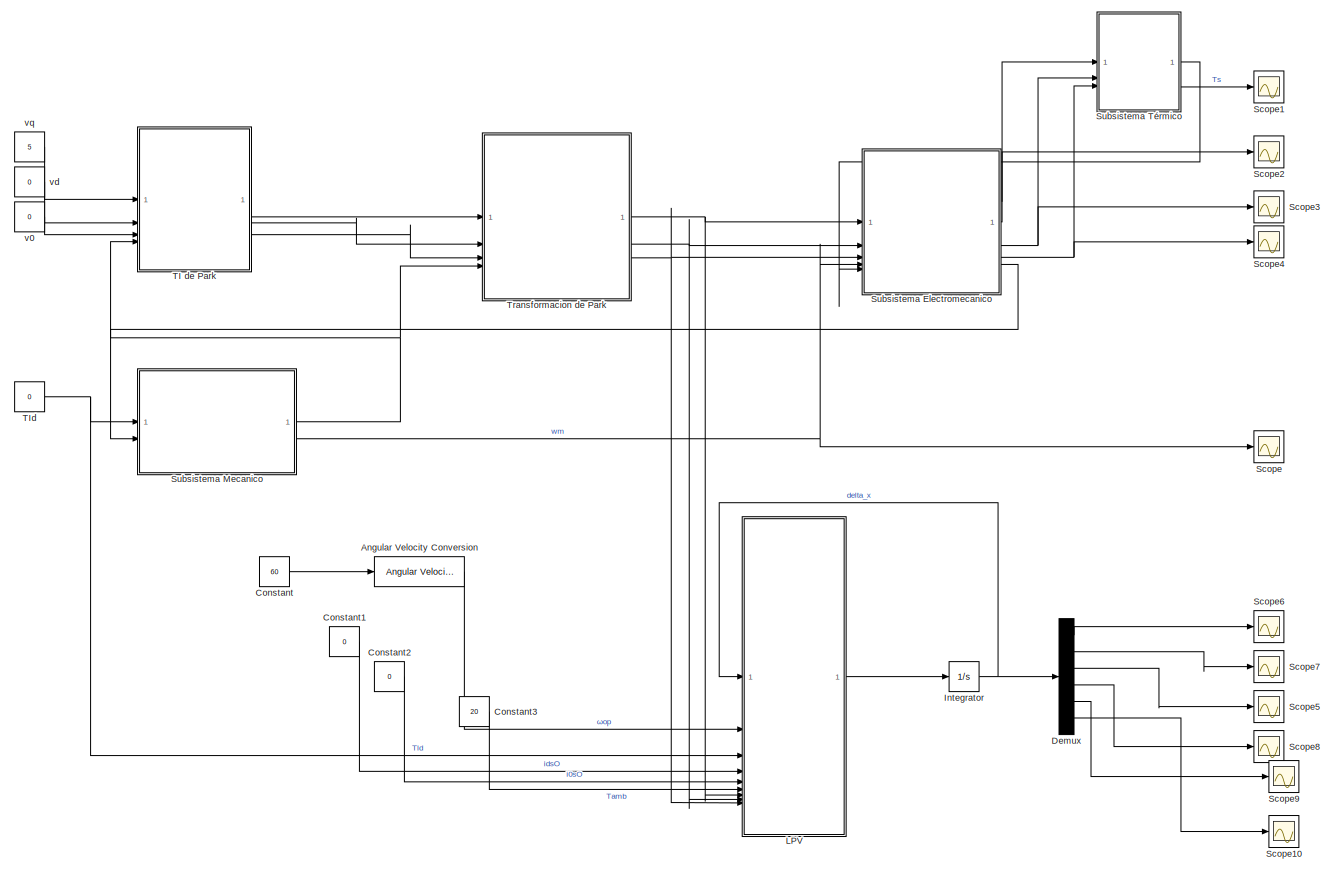
[diagram: root canvas - part 1/1, most of the canvas]
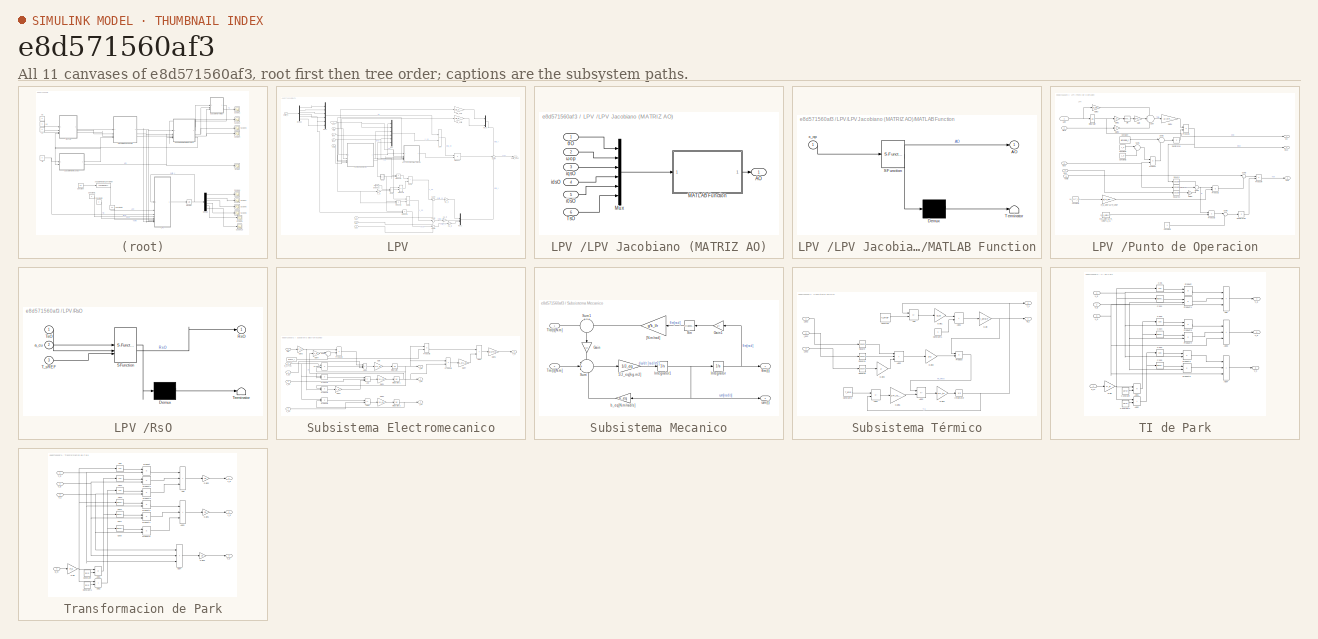
[diagram: thumbnail index - all 11 canvases of the model, root first then tree order]
MODEL slx_e8d571560af3
KIND model
CONFIG AbsTol = auto
CONFIG EnableMultiTasking = off
CONFIG FixedStep = auto
CONFIG MaxStep = auto
CONFIG MinStep = auto
CONFIG PostLoadFcn = parametros_sistema_completo\nrun("parametros_sistema_completo.mlx")
CONFIG RelTol = 1e-3
CONFIG SampleTimeConstraint = Unconstrained
CONFIG SolverName = VariableStepAuto
CONFIG StartTime = 0.0
CONFIG StopTime = 10.0
BLOCK [Reference] Angular Velocity Conversion  REF=aerolibconvert2/Angular Velocity
Conversion
  SourceBlock = aerolibconvert2/Angular Velocity\nConversion
  SourceType = Angular Velocity Conversion
BLOCK [Constant] Constant
  Value = 60
BLOCK [Constant] Constant1
  Value = 0
BLOCK [Constant] Constant2
  Value = 0
BLOCK [Constant] Constant3
  Value = 20
BLOCK [Demux] Demux
  Outputs = 6
BLOCK [Integrator] Integrator
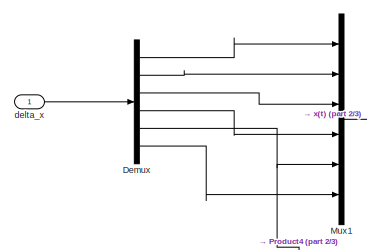
[diagram: LPV  - part 1/3, top left region]
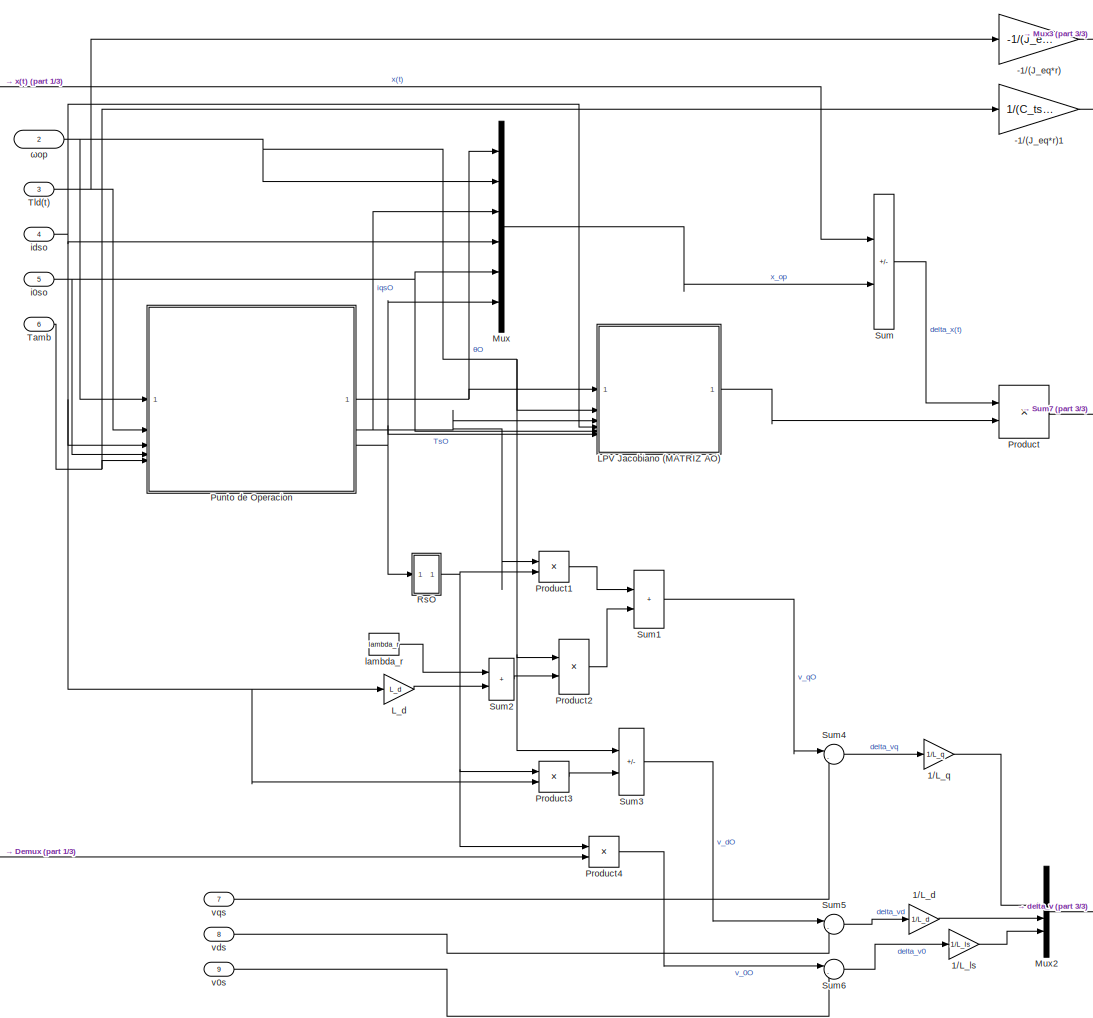
[diagram: LPV  - part 2/3, center side, full height]
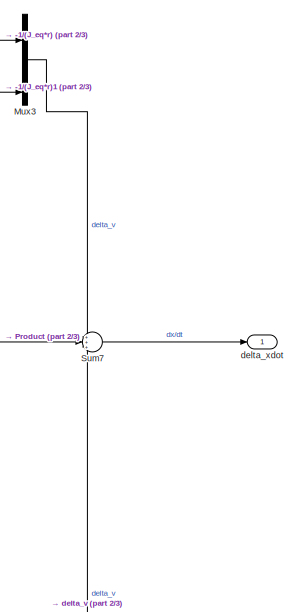
[diagram: LPV  - part 3/3, middle right region]
BLOCK [SubSystem] LPV 
BLOCK [Gain] LPV /-1//(J_eq*r)
  Gain = -1/(J_eq*r)
BLOCK [Gain] LPV /-1//(J_eq*r)1
  Gain = 1/(C_ts*R_ts_amb)
BLOCK [Gain] LPV /1//L_d
  Gain = 1/L_d
BLOCK [Gain] LPV /1//L_ls
  Gain = 1/L_ls
BLOCK [Gain] LPV /1//L_q
  Gain = 1/L_q
BLOCK [Demux] LPV /Demux
  Outputs = 6
BLOCK [SubSystem] LPV /LPV Jacobiano (MATRIZ AO)
BLOCK [Outport] LPV /LPV Jacobiano (MATRIZ AO)/AO
BLOCK [SubSystem] LPV /LPV Jacobiano (MATRIZ AO)/MATLAB Function
  ErrorFcn = Stateflow.Translate.translate
  PermitHierarchicalResolution = ExplicitOnly
  SFBlockType = MATLAB Function
  TreatAsAtomicUnit = on
BLOCK [Demux] LPV /LPV Jacobiano (MATRIZ AO)/MATLAB Function/ Demux 
  Outputs = 1
BLOCK [S-Function] LPV /LPV Jacobiano (MATRIZ AO)/MATLAB Function/ SFunction 
  EnableBusSupport = off
  FunctionName = sf_sfun
  Parameters = params
  PortCounts = [1 2]
  SFcnIsStateOwnerBlock = off
  SFunctionDeploymentMode = off
  Tag = Stateflow S-Function 2
BLOCK [Terminator] LPV /LPV Jacobiano (MATRIZ AO)/MATLAB Function/ Terminator 
BLOCK [Outport] LPV /LPV Jacobiano (MATRIZ AO)/MATLAB Function/AO
BLOCK [Inport] LPV /LPV Jacobiano (MATRIZ AO)/MATLAB Function/x_op
BLOCK [Mux] LPV /LPV Jacobiano (MATRIZ AO)/Mux
  DisplayOption = bar
  Inputs = 6
BLOCK [Inport] LPV /LPV Jacobiano (MATRIZ AO)/TsO
  Port = 6
BLOCK [Inport] LPV /LPV Jacobiano (MATRIZ AO)/i0sO
  Port = 5
BLOCK [Inport] LPV /LPV Jacobiano (MATRIZ AO)/idsO
  Port = 4
BLOCK [Inport] LPV /LPV Jacobiano (MATRIZ AO)/iqsO
  Port = 3
BLOCK [Inport] LPV /LPV Jacobiano (MATRIZ AO)/θO
BLOCK [Inport] LPV /LPV Jacobiano (MATRIZ AO)/ωop
  Port = 2
BLOCK [Gain] LPV /L_d
  Gain = L_d
BLOCK [Mux] LPV /Mux
  DisplayOption = bar
  Inputs = 6
BLOCK [Mux] LPV /Mux1
  DisplayOption = bar
  Inputs = 6
BLOCK [Mux] LPV /Mux2
  DisplayOption = bar
  Inputs = 6
BLOCK [Mux] LPV /Mux3
  DisplayOption = bar
  Inputs = 6
BLOCK [Product] LPV /Product
  Multiplication = Matrix(*)
BLOCK [Product] LPV /Product1
BLOCK [Product] LPV /Product2
BLOCK [Product] LPV /Product3
BLOCK [Product] LPV /Product4
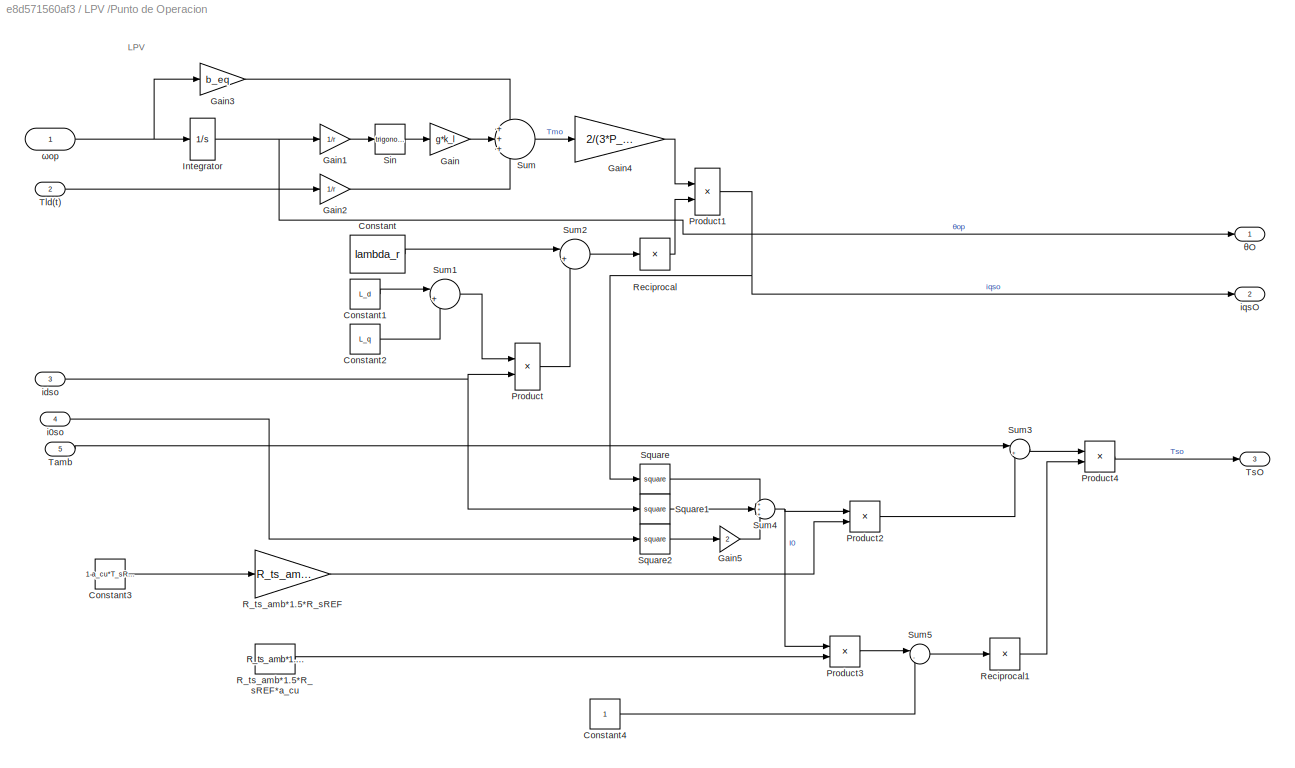
BLOCK [SubSystem] LPV /Punto de Operacion
BLOCK [Constant] LPV /Punto de Operacion/Constant
  Value = lambda_r
BLOCK [Constant] LPV /Punto de Operacion/Constant1
  Value = L_d
BLOCK [Constant] LPV /Punto de Operacion/Constant2
  Value = L_q
BLOCK [Constant] LPV /Punto de Operacion/Constant3
  Value = 1-a_cu*T_sREF
BLOCK [Constant] LPV /Punto de Operacion/Constant4
BLOCK [Gain] LPV /Punto de Operacion/Gain
  Gain = g*k_l
BLOCK [Gain] LPV /Punto de Operacion/Gain1
  Gain = 1/r
BLOCK [Gain] LPV /Punto de Operacion/Gain2
  Gain = 1/r
BLOCK [Gain] LPV /Punto de Operacion/Gain3
  Gain = b_eq
BLOCK [Gain] LPV /Punto de Operacion/Gain4
  Gain = 2/(3*P_p)
BLOCK [Gain] LPV /Punto de Operacion/Gain5
  Gain = 2
BLOCK [Integrator] LPV /Punto de Operacion/Integrator
BLOCK [Product] LPV /Punto de Operacion/Product
BLOCK [Product] LPV /Punto de Operacion/Product1
BLOCK [Product] LPV /Punto de Operacion/Product2
BLOCK [Product] LPV /Punto de Operacion/Product3
BLOCK [Product] LPV /Punto de Operacion/Product4
BLOCK [Gain] LPV /Punto de Operacion/R_ts_amb*1.5*R_sREF
  Gain = R_ts_amb*1.5*R_sREF
BLOCK [Constant] LPV /Punto de Operacion/R_ts_amb*1.5*R_sREF*a_cu
  Value = R_ts_amb*1.5*R_sREF*a_cu
BLOCK [Product] LPV /Punto de Operacion/Reciprocal
  Inputs = /
BLOCK [Product] LPV /Punto de Operacion/Reciprocal1
  Inputs = /
BLOCK [Trigonometry] LPV /Punto de Operacion/Sin
BLOCK [Math] LPV /Punto de Operacion/Square
  Operator = square
BLOCK [Math] LPV /Punto de Operacion/Square1
  Operator = square
BLOCK [Math] LPV /Punto de Operacion/Square2
  Operator = square
BLOCK [Sum] LPV /Punto de Operacion/Sum
  Inputs = +++
BLOCK [Sum] LPV /Punto de Operacion/Sum1
  Inputs = |+-
BLOCK [Sum] LPV /Punto de Operacion/Sum2
  Inputs = |++
BLOCK [Sum] LPV /Punto de Operacion/Sum3
  Inputs = |++
BLOCK [Sum] LPV /Punto de Operacion/Sum4
  Inputs = +++
BLOCK [Sum] LPV /Punto de Operacion/Sum5
  Inputs = |-+
BLOCK [Inport] LPV /Punto de Operacion/Tamb
  Port = 5
BLOCK [Inport] LPV /Punto de Operacion/Tld(t)
  Port = 2
BLOCK [Outport] LPV /Punto de Operacion/TsO
  Port = 3
BLOCK [Inport] LPV /Punto de Operacion/i0so
  Port = 4
BLOCK [Inport] LPV /Punto de Operacion/idso
  Port = 3
BLOCK [Outport] LPV /Punto de Operacion/iqsO
  Port = 2
BLOCK [Outport] LPV /Punto de Operacion/θO
BLOCK [Inport] LPV /Punto de Operacion/ωop
BLOCK [SubSystem] LPV /RsO
  ErrorFcn = Stateflow.Translate.translate
  PermitHierarchicalResolution = ExplicitOnly
  SFBlockType = MATLAB Function
  TreatAsAtomicUnit = on
BLOCK [Demux] LPV /RsO/ Demux 
  Outputs = 1
BLOCK [S-Function] LPV /RsO/ SFunction 
  EnableBusSupport = off
  FunctionName = sf_sfun
  Parameters = R_sREF
  PortCounts = [3 2]
  SFcnIsStateOwnerBlock = off
  SFunctionDeploymentMode = off
  Tag = Stateflow S-Function 1
BLOCK [Terminator] LPV /RsO/ Terminator 
BLOCK [Outport] LPV /RsO/RsO
BLOCK [Inport] LPV /RsO/T_sREF
  Port = 3
BLOCK [Inport] LPV /RsO/TsO
BLOCK [Inport] LPV /RsO/a_cu
  Port = 2
BLOCK [Sum] LPV /Sum
  IconShape = rectangular
  Inputs = +-
BLOCK [Sum] LPV /Sum1
  IconShape = rectangular
BLOCK [Sum] LPV /Sum2
  IconShape = rectangular
BLOCK [Sum] LPV /Sum3
  IconShape = rectangular
  Inputs = -+
BLOCK [Sum] LPV /Sum4
  Inputs = |-+
BLOCK [Sum] LPV /Sum5
  Inputs = |-+
BLOCK [Sum] LPV /Sum6
  Inputs = |-+
BLOCK [Sum] LPV /Sum7
  Inputs = +++
BLOCK [Inport] LPV /Tamb
  Port = 6
BLOCK [Inport] LPV /Tld(t)
  Port = 3
BLOCK [Inport] LPV /delta_x
BLOCK [Outport] LPV /delta_xdot
BLOCK [Inport] LPV /i0so
  Port = 5
BLOCK [Inport] LPV /idso
  Port = 4
BLOCK [Constant] LPV /lambda_r
  Value = lambda_r
BLOCK [Inport] LPV /v0s
  Port = 9
BLOCK [Inport] LPV /vds
  Port = 8
BLOCK [Inport] LPV /vqs
  Port = 7
BLOCK [Inport] LPV /ωop
  Port = 2
BLOCK [Scope] Scope
  ActiveDisplayYMaximum = 91.14361
  ActiveDisplayYMinimum = 73.83566
  Commented = on
  Floating = off
  GraphicalSettings = {"GraphicalSettings":{"LegacySettings":true,"Style":{"AxesScalingProperties":{"ScaleAxesLimitsAtStop":false},"Style":{"AxesColor":"[0 0 0]","ChannelNames":[""],"ColorOrder":"[1 1 0.0666666666666667;0.0745098039215686 0.623529411764706 1;1 0.411764705882353 0.16078431372549;0.392156862745098 0.831372549019608 0.0745098039215686;0.717647058823529 0.274509803921569 1;0.0588235294117647 1 1;1 0.074509...<+433ch>
  MultipleDisplayCache = [{"MaxYLimMag":91.14361,"MaxYLimReal":91.14361,"MinYLimMag":73.83566,"MinYLimReal":73.83566,"PlotAsMagnitudePhase":false,"ShowGrid":true,"ShowLegend":false,"Title":"%<SignalLabel>","YLabel":""}]
  NumInputPorts = 1
  WasSavedAsWebScope = on
BLOCK [Scope] Scope1
  ActiveDisplayYMaximum = 1.93128
  ActiveDisplayYMinimum = -0.21459
  Commented = on
  DataLoggingVariableName = ScopeData1
  Floating = off
  GraphicalSettings = {"GraphicalSettings":{"LegacySettings":true,"Style":{"Style":{"AxesColor":"[0 0 0]","ChannelNames":[""],"ColorOrder":"[1 1 0.0666666666666667;0.0745098039215686 0.623529411764706 1;1 0.411764705882353 0.16078431372549;0.392156862745098 0.831372549019608 0.0745098039215686;0.717647058823529 0.274509803921569 1;0.0588235294117647 1 1;1 0.0745098039215686 0.650980392156863]","CurrentConfiguration":"e...<+343ch>
  MultipleDisplayCache = [{"MaxYLimMag":1.93128,"MaxYLimReal":1.93128,"MinYLimMag":0,"MinYLimReal":-0.21459,"PlotAsMagnitudePhase":false,"ShowGrid":true,"ShowLegend":false,"Title":"%<SignalLabel>","YLabel":""}]
  NumInputPorts = 1
  WasSavedAsWebScope = on
  WindowPosition = [1 -851 1440 782]
BLOCK [Scope] Scope10
  ActiveDisplayYMaximum = 31.468208023043097
  ActiveDisplayYMinimum = 1.2614013021411665
  DataLoggingVariableName = ScopeData10
  Floating = off
  GraphicalSettings = {"Style":{"BackgroundColor":[0.12941176470588237,0.12941176470588237,0.12941176470588237],"AxesColor":[0.07058823529411765,0.07058823529411765,0.07058823529411765],"LabelsColor":[0.8509803921568627,0.8509803921568627,0.8509803921568627],"PreserveColors":false,"Visible":[true],"LineStyle":["-"],"LineWidth":[1.5],"BarWidth":[0.9],"LineColor":["auto"],"LineFaceAlpha":[1],"LineEdgeAlpha":[1],"Marker":...<+1986ch>  <repeated x3 — deduplicated; at blocks: Scope10, Scope8, Scope9>
  MultipleDisplayCache = [{"MaxYLimMag":91.14361,"MaxYLimReal":31.468208023043097,"MinYLimMag":73.83566,"MinYLimReal":1.2614013021411665,"PlotAsMagnitudePhase":false,"ShowGrid":true,"ShowLegend":false,"Title":"%<SignalLabel>","YLabel":""}]
  NumInputPorts = 1
  ScopeFrameLocation = window
  WasSavedAsWebScope = on
  WindowPosition = [680.000000,330.000000,560.000000,420.000000,]
BLOCK [Scope] Scope2
  ActiveDisplayYMaximum = 3.09165
  ActiveDisplayYMinimum = -0.79232
  Commented = on
  DataLoggingVariableName = ScopeData2
  Floating = off
  GraphicalSettings = {"GraphicalSettings":{"LegacySettings":true,"Style":{"Style":{"AxesColor":"[0 0 0]","ChannelNames":[""],"ColorOrder":"[1 1 0.0666666666666667;0.0745098039215686 0.623529411764706 1;1 0.411764705882353 0.16078431372549;0.392156862745098 0.831372549019608 0.0745098039215686;0.717647058823529 0.274509803921569 1;0.0588235294117647 1 1;1 0.0745098039215686 0.650980392156863]","CurrentConfiguration":"e...<+343ch>
  MultipleDisplayCache = [{"MaxYLimMag":3.09165,"MaxYLimReal":3.09165,"MinYLimMag":0,"MinYLimReal":-0.79232,"PlotAsMagnitudePhase":false,"ShowGrid":true,"ShowLegend":false,"Title":"%<SignalLabel>","YLabel":""}]
  NumInputPorts = 1
  WasSavedAsWebScope = on
  WindowPosition = [417 -563 560 420]
BLOCK [Scope] Scope3
  ActiveDisplayYMaximum = 1.75287
  ActiveDisplayYMinimum = -0.21509
  Commented = on
  DataLoggingVariableName = ScopeData3
  Floating = off
  GraphicalSettings = {"GraphicalSettings":{"LegacySettings":true,"Style":{"Style":{"AxesColor":"[0 0 0]","ChannelNames":[""],"ColorOrder":"[1 1 0.0666666666666667;0.0745098039215686 0.623529411764706 1;1 0.411764705882353 0.16078431372549;0.392156862745098 0.831372549019608 0.0745098039215686;0.717647058823529 0.274509803921569 1;0.0588235294117647 1 1;1 0.0745098039215686 0.650980392156863]","CurrentConfiguration":"e...<+379ch>
  MultipleDisplayCache = [{"MaxYLimMag":1.75287,"MaxYLimReal":1.75287,"MinYLimMag":0,"MinYLimReal":-0.21509,"PlotAsMagnitudePhase":false,"ShowGrid":true,"ShowLegend":false,"Title":"%<SignalLabel>","YLabel":""}]
  NumInputPorts = 1
  WasSavedAsWebScope = on
BLOCK [Scope] Scope4
  ActiveDisplayYMaximum = 5E-11
  ActiveDisplayYMinimum = -4.8E-11
  Commented = on
  DataLoggingVariableName = ScopeData4
  Floating = off
  GraphicalSettings = {"GraphicalSettings":{"LegacySettings":true,"Style":{"Style":{"AxesColor":"[0 0 0]","ChannelNames":[""],"ColorOrder":"[1 1 0.0666666666666667;0.0745098039215686 0.623529411764706 1;1 0.411764705882353 0.16078431372549;0.392156862745098 0.831372549019608 0.0745098039215686;0.717647058823529 0.274509803921569 1;0.0588235294117647 1 1;1 0.0745098039215686 0.650980392156863]","CurrentConfiguration":"e...<+379ch>
  MultipleDisplayCache = [{"MaxYLimMag":5E-11,"MaxYLimReal":5E-11,"MinYLimMag":0,"MinYLimReal":-4.8E-11,"PlotAsMagnitudePhase":false,"ShowGrid":true,"ShowLegend":false,"Title":"%<SignalLabel>","YLabel":""}]
  NumInputPorts = 1
  WasSavedAsWebScope = on
BLOCK [Scope] Scope5
  ActiveDisplayYMaximum = 44.635452648293487
  ActiveDisplayYMinimum = -67.200227328003422
  DataLoggingVariableName = ScopeData5
  Floating = off
  GraphicalSettings = {"AxesScalingProperties":{"AlignXAxis":"Center","AlignYAxis":"Center","AutoScaleXAxisLimits":false,"AxesScaling":"Manual","AxesScalingNumUpdates":10,"ExpandOnly":true,"ScaleAxesLimitsAtStop":false,"XAxisDataRange":100,"YAxisDataRange":80},"DisplayProperties":{"ColorOrder":["auto","auto","auto","auto","auto","auto","auto","auto","auto","auto","auto","auto","auto","auto","auto","auto","auto","auto",...<+1994ch>
  MultipleDisplayCache = [{"MaxYLimMag":91.14361,"MaxYLimReal":44.635452648293487,"MinYLimMag":73.83566,"MinYLimReal":-67.200227328003422,"PlotAsMagnitudePhase":false,"ShowGrid":true,"ShowLegend":false,"Title":"%<SignalLabel>","YLabel":""}]
  NumInputPorts = 1
  ScopeFrameLocation = window
  WasSavedAsWebScope = on
  WindowPosition = [767.000000,182.000000,560.000000,420.000000,]
BLOCK [Scope] Scope6
  ActiveDisplayYMaximum = 12.244259941879115
  ActiveDisplayYMinimum = -60.0071453689453
  DataLoggingVariableName = ScopeData6
  Floating = off
  GraphicalSettings = {"AxesScalingProperties":{"AlignXAxis":"Center","AlignYAxis":"Center","AutoScaleXAxisLimits":false,"AxesScaling":"Manual","AxesScalingNumUpdates":10,"ExpandOnly":true,"ScaleAxesLimitsAtStop":false,"XAxisDataRange":100,"YAxisDataRange":80},"DisplayProperties":{"ColorOrder":["auto","auto","auto","auto","auto","auto","auto","auto","auto","auto","auto","auto","auto","auto","auto","auto","auto","auto",...<+1954ch>
  MultipleDisplayCache = [{"MaxYLimMag":91.14361,"MaxYLimReal":12.244259941879115,"MinYLimMag":73.83566,"MinYLimReal":-60.0071453689453,"PlotAsMagnitudePhase":false,"ShowGrid":true,"ShowLegend":false,"Title":"%<SignalLabel>","YLabel":""}]
  NumInputPorts = 1
  ScopeFrameLocation = window
  WasSavedAsWebScope = on
  WindowPosition = [680.000000,330.000000,560.000000,420.000000,]
BLOCK [Scope] Scope7
  ActiveDisplayYMaximum = 11.094644624657567
  ActiveDisplayYMinimum = -3.8566133388452828
  DataLoggingVariableName = ScopeData7
  Floating = off
  GraphicalSettings = {"GraphicalSettings":{"LegacySettings":true,"Style":{"AxesScalingProperties":{"ScaleAxesLimitsAtStop":false},"Style":{"AxesColor":"[0 0 0]","ChannelNames":[""],"ColorOrder":"[1 1 0.0666666666666667;0.0745098039215686 0.623529411764706 1;1 0.411764705882353 0.16078431372549;0.392156862745098 0.831372549019608 0.0745098039215686;0.717647058823529 0.274509803921569 1;0.0588235294117647 1 1;1 0.074509...<+433ch>
  MultipleDisplayCache = [{"MaxYLimMag":91.14361,"MaxYLimReal":11.094644624657567,"MinYLimMag":73.83566,"MinYLimReal":-3.8566133388452828,"PlotAsMagnitudePhase":false,"ShowGrid":true,"ShowLegend":false,"Title":"%<SignalLabel>","YLabel":""}]
  NumInputPorts = 1
  ScopeFrameLocation = window
  WasSavedAsWebScope = on
  WindowPosition = [680.000000,330.000000,560.000000,420.000000,]
BLOCK [Scope] Scope8
  ActiveDisplayYMaximum = 10.142709367053149
  ActiveDisplayYMinimum = -4.8085485964497172
  DataLoggingVariableName = ScopeData8
  Floating = off
  MultipleDisplayCache = [{"MaxYLimMag":91.14361,"MaxYLimReal":10.142709367053149,"MinYLimMag":73.83566,"MinYLimReal":-4.8085485964497172,"PlotAsMagnitudePhase":false,"ShowGrid":true,"ShowLegend":false,"Title":"%<SignalLabel>","YLabel":""}]
  NumInputPorts = 1
  ScopeFrameLocation = window
  WasSavedAsWebScope = on
  WindowPosition = [680.000000,330.000000,560.000000,420.000000,]
BLOCK [Scope] Scope9
  ActiveDisplayYMaximum = 12.913880935880563
  ActiveDisplayYMinimum = -7.1222346828694452
  DataLoggingVariableName = ScopeData9
  Floating = off
  MultipleDisplayCache = [{"MaxYLimMag":91.14361,"MaxYLimReal":12.913880935880563,"MinYLimMag":73.83566,"MinYLimReal":-7.1222346828694452,"PlotAsMagnitudePhase":false,"ShowGrid":true,"ShowLegend":false,"Title":"%<SignalLabel>","YLabel":""}]
  NumInputPorts = 1
  ScopeFrameLocation = window
  WasSavedAsWebScope = on
  WindowPosition = [680.000000,330.000000,560.000000,420.000000,]
BLOCK [SubSystem] Subsistema Electromecanico
BLOCK [Sum] Subsistema Electromecanico/Add
  IconShape = rectangular
  Inputs = -++
BLOCK [Sum] Subsistema Electromecanico/Add1
  IconShape = rectangular
  Inputs = --+
BLOCK [Sum] Subsistema Electromecanico/Add2
  IconShape = rectangular
  Inputs = -+
BLOCK [Sum] Subsistema Electromecanico/Add3
  IconShape = rectangular
BLOCK [Gain] Subsistema Electromecanico/Gain
  Gain = 1/L_q
BLOCK [Gain] Subsistema Electromecanico/Gain1
  Gain = 1/L_d
BLOCK [Gain] Subsistema Electromecanico/Gain2
  Gain = 1/L_ls
BLOCK [Gain] Subsistema Electromecanico/Gain3
  Gain = P_p
BLOCK [Gain] Subsistema Electromecanico/Gain4
  Gain = L_d
BLOCK [Gain] Subsistema Electromecanico/Gain5
  Gain = L_q
BLOCK [Gain] Subsistema Electromecanico/Gain6
  Gain = 3/2*P_p
BLOCK [Gain] Subsistema Electromecanico/Gain7
  Gain = L_d-L_q
BLOCK [Integrator] Subsistema Electromecanico/Integrator
BLOCK [Integrator] Subsistema Electromecanico/Integrator1
BLOCK [Integrator] Subsistema Electromecanico/Integrator2
BLOCK [Product] Subsistema Electromecanico/Product
BLOCK [Product] Subsistema Electromecanico/Product1
BLOCK [Product] Subsistema Electromecanico/Product2
BLOCK [Product] Subsistema Electromecanico/Product3
BLOCK [Product] Subsistema Electromecanico/Product4
BLOCK [Product] Subsistema Electromecanico/Product5
BLOCK [Product] Subsistema Electromecanico/Product6
BLOCK [Inport] Subsistema Electromecanico/R_s(T(t))
  Port = 5
BLOCK [Sum] Subsistema Electromecanico/Sum3
  Inputs = |++
BLOCK [Outport] Subsistema Electromecanico/T_m
  Port = 4
BLOCK [Outport] Subsistema Electromecanico/i_0s
  Port = 3
BLOCK [Outport] Subsistema Electromecanico/i_ds
  Port = 2
BLOCK [Outport] Subsistema Electromecanico/i_qs
BLOCK [Inport] Subsistema Electromecanico/v_0s
  Port = 3
BLOCK [Inport] Subsistema Electromecanico/v_ds
  Port = 2
BLOCK [Inport] Subsistema Electromecanico/v_qs
BLOCK [Constant] Subsistema Electromecanico/λ
  NameLocation = left
  Value = lambda_r
BLOCK [Inport] Subsistema Electromecanico/ωm
  Port = 4
BLOCK [SubSystem] Subsistema Mecanico
BLOCK [Gain] Subsistema Mecanico/1//J_eq[kg.m2]
  Gain = 1/J_eq
BLOCK [Gain] Subsistema Mecanico/Gain
  Gain = 1/r
  NameLocation = left
BLOCK [Gain] Subsistema Mecanico/Gain1
  Gain = 1/r
  NameLocation = top
BLOCK [Integrator] Subsistema Mecanico/Integrator
BLOCK [Integrator] Subsistema Mecanico/Integrator1
BLOCK [Trigonometry] Subsistema Mecanico/Sin
  NameLocation = top
BLOCK [Sum] Subsistema Mecanico/Sum
  Inputs = -+-
BLOCK [Sum] Subsistema Mecanico/Sum1
  NameLocation = left
BLOCK [Inport] Subsistema Mecanico/Tld(t)[N.m]
BLOCK [Inport] Subsistema Mecanico/Tm(t)[N.m]
  Port = 2
BLOCK [Gain] Subsistema Mecanico/[N.m//rad]
  Gain = g*k_l/r
  NameLocation = top
BLOCK [Gain] Subsistema Mecanico/b_eq[N.m//rad//s]
  Gain = b_eq
  NameLocation = top
BLOCK [Outport] Subsistema Mecanico/θm(t)
  NameLocation = top
BLOCK [Outport] Subsistema Mecanico/ωm(t)
  Port = 2
BLOCK [SubSystem] Subsistema Térmico
BLOCK [Sum] Subsistema Térmico/Add
  IconShape = rectangular
  Inputs = +-
BLOCK [Sum] Subsistema Térmico/Add1
  IconShape = rectangular
BLOCK [Sum] Subsistema Térmico/Add2
  IconShape = rectangular
  Inputs = +++
BLOCK [Sum] Subsistema Térmico/Add3
  IconShape = rectangular
  Inputs = +-
BLOCK [Sum] Subsistema Térmico/Add4
  IconShape = rectangular
  Inputs = -+
BLOCK [Constant] Subsistema Térmico/Constant
  Value = T_sREF
BLOCK [Constant] Subsistema Térmico/Constant1
BLOCK [Constant] Subsistema Térmico/Constant2
  Value = T_amb
BLOCK [Gain] Subsistema Térmico/Gain
  Gain = R_sREF
BLOCK [Gain] Subsistema Térmico/Gain1
  Gain = a_cu
BLOCK [Gain] Subsistema Térmico/Gain2
  Gain = 3/2
BLOCK [Gain] Subsistema Térmico/Gain3
  Gain = 2
BLOCK [Gain] Subsistema Térmico/Gain4
  Gain = 1/C_ts
BLOCK [Gain] Subsistema Térmico/Gain5
  Gain = 1/R_ts_amb
BLOCK [Integrator] Subsistema Térmico/Integrator
BLOCK [Product] Subsistema Térmico/Product
BLOCK [Outport] Subsistema Térmico/R_s
BLOCK [Math] Subsistema Térmico/Square
  Operator = square
  OutDataTypeStr = double
BLOCK [Math] Subsistema Térmico/Square1
  Operator = square
BLOCK [Math] Subsistema Térmico/Square2
  Operator = square
BLOCK [Outport] Subsistema Térmico/T_s
  Port = 2
BLOCK [Inport] Subsistema Térmico/i_0s2
  Port = 3
BLOCK [Inport] Subsistema Térmico/i_ds2
  Port = 2
BLOCK [Inport] Subsistema Térmico/i_qs2
BLOCK [SubSystem] TI de Park
BLOCK [Sum] TI de Park/Add
  IconShape = rectangular
  Inputs = +++
BLOCK [Sum] TI de Park/Add1
  IconShape = rectangular
  Inputs = +-
BLOCK [Sum] TI de Park/Add2
  IconShape = rectangular
BLOCK [Sum] TI de Park/Add3
  IconShape = rectangular
  Inputs = +++
BLOCK [Sum] TI de Park/Add4
  IconShape = rectangular
  Inputs = +++
BLOCK [Constant] TI de Park/Constant
  Value = 2/3*pi
BLOCK [Constant] TI de Park/Constant1
  Value = 2/3*pi
BLOCK [Trigonometry] TI de Park/Cos
  Operator = cos
BLOCK [Trigonometry] TI de Park/Cos1
BLOCK [Trigonometry] TI de Park/Cos2
  Operator = cos
BLOCK [Trigonometry] TI de Park/Cos3
  Operator = cos
BLOCK [Trigonometry] TI de Park/Cos4
BLOCK [Trigonometry] TI de Park/Cos5
BLOCK [Gain] TI de Park/Gain
  Gain = P_p
BLOCK [Product] TI de Park/Product
BLOCK [Product] TI de Park/Product1
BLOCK [Product] TI de Park/Product2
BLOCK [Product] TI de Park/Product3
BLOCK [Product] TI de Park/Product4
BLOCK [Product] TI de Park/Product5
BLOCK [Inport] TI de Park/v_0
  Port = 3
BLOCK [Outport] TI de Park/v_a
BLOCK [Outport] TI de Park/v_b
  Port = 2
BLOCK [Outport] TI de Park/v_c
  Port = 3
BLOCK [Inport] TI de Park/v_d
  Port = 2
BLOCK [Inport] TI de Park/v_q
BLOCK [Inport] TI de Park/θ_m
  Port = 4
BLOCK [Constant] TId
  Value = 0
BLOCK [SubSystem] Transformacion de Park
BLOCK [Sum] Transformacion de Park/Add
  IconShape = rectangular
  Inputs = +++
BLOCK [Sum] Transformacion de Park/Add1
  IconShape = rectangular
  Inputs = +-
BLOCK [Sum] Transformacion de Park/Add2
  IconShape = rectangular
BLOCK [Sum] Transformacion de Park/Add3
  IconShape = rectangular
  Inputs = +++
BLOCK [Sum] Transformacion de Park/Add4
  IconShape = rectangular
  Inputs = +++
BLOCK [Constant] Transformacion de Park/Constant
  Value = 2/3*pi
BLOCK [Constant] Transformacion de Park/Constant1
  Value = 2/3*pi
BLOCK [Trigonometry] Transformacion de Park/Cos
  Operator = cos
BLOCK [Trigonometry] Transformacion de Park/Cos1
  Operator = cos
BLOCK [Trigonometry] Transformacion de Park/Cos2
  Operator = cos
BLOCK [Trigonometry] Transformacion de Park/Cos3
BLOCK [Trigonometry] Transformacion de Park/Cos4
BLOCK [Trigonometry] Transformacion de Park/Cos5
BLOCK [Gain] Transformacion de Park/Gain
  Gain = P_p
BLOCK [Gain] Transformacion de Park/Gain1
  Gain = 2/3
BLOCK [Gain] Transformacion de Park/Gain2
  Gain = 2/3
BLOCK [Gain] Transformacion de Park/Gain3
  Gain = 1/3
BLOCK [Product] Transformacion de Park/Product
BLOCK [Product] Transformacion de Park/Product1
BLOCK [Product] Transformacion de Park/Product2
BLOCK [Product] Transformacion de Park/Product3
BLOCK [Product] Transformacion de Park/Product4
BLOCK [Product] Transformacion de Park/Product5
BLOCK [Outport] Transformacion de Park/v_0
  Port = 3
BLOCK [Inport] Transformacion de Park/v_a
BLOCK [Inport] Transformacion de Park/v_b
  Port = 2
BLOCK [Inport] Transformacion de Park/v_c
  Port = 3
BLOCK [Outport] Transformacion de Park/v_d
  Port = 2
BLOCK [Outport] Transformacion de Park/v_q
BLOCK [Inport] Transformacion de Park/θ_m
  Port = 4
BLOCK [Constant] v0
  Value = 0
BLOCK [Constant] vd
  Value = 0
BLOCK [Constant] vq
  Value = 5
ANNOTATION LPV /Punto de Operacion: LPV
LINE Angular Velocity Conversion:1 -> LPV :2
LINE Constant1:1 -> LPV :4
LINE Constant2:1 -> LPV :5
LINE Constant3:1 -> LPV :6
LINE Constant:1 -> Angular Velocity Conversion:1
LINE Demux:1 -> Scope6:1
LINE Demux:2 -> Scope7:1
LINE Demux:3 -> Scope5:1
LINE Demux:4 -> Scope8:1
LINE Demux:5 -> Scope9:1
LINE Demux:6 -> Scope10:1
NET Integrator:1 -> Demux:1, LPV :1
LINE LPV /-1//(J_eq*r)1:1 -> LPV /Mux3:6
LINE LPV /-1//(J_eq*r):1 -> LPV /Mux3:2
LINE LPV /1//L_d:1 -> LPV /Mux2:4
LINE LPV /1//L_ls:1 -> LPV /Mux2:5
LINE LPV /1//L_q:1 -> LPV /Mux2:3
LINE LPV /Demux:1 -> LPV /Mux1:1
LINE LPV /Demux:2 -> LPV /Mux1:2
LINE LPV /Demux:3 -> LPV /Mux1:3
LINE LPV /Demux:4 -> LPV /Mux1:4
NET LPV /Demux:5 -> LPV /Mux1:5, LPV /Product4:2
LINE LPV /Demux:6 -> LPV /Mux1:6
LINE LPV /LPV Jacobiano (MATRIZ AO)/MATLAB Function:1 -> LPV /LPV Jacobiano (MATRIZ AO)/AO:1
LINE LPV /LPV Jacobiano (MATRIZ AO)/Mux:1 -> LPV /LPV Jacobiano (MATRIZ AO)/MATLAB Function:1
LINE LPV /LPV Jacobiano (MATRIZ AO)/TsO:1 -> LPV /LPV Jacobiano (MATRIZ AO)/Mux:6
LINE LPV /LPV Jacobiano (MATRIZ AO)/i0sO:1 -> LPV /LPV Jacobiano (MATRIZ AO)/Mux:5
LINE LPV /LPV Jacobiano (MATRIZ AO)/idsO:1 -> LPV /LPV Jacobiano (MATRIZ AO)/Mux:4
LINE LPV /LPV Jacobiano (MATRIZ AO)/iqsO:1 -> LPV /LPV Jacobiano (MATRIZ AO)/Mux:3
LINE LPV /LPV Jacobiano (MATRIZ AO)/θO:1 -> LPV /LPV Jacobiano (MATRIZ AO)/Mux:1
LINE LPV /LPV Jacobiano (MATRIZ AO)/ωop:1 -> LPV /LPV Jacobiano (MATRIZ AO)/Mux:2
LINE LPV /LPV Jacobiano (MATRIZ AO):1 -> LPV /Product:2
LINE LPV /L_d:1 -> LPV /Sum2:2
LINE LPV /Mux1:1 -> LPV /Sum:1
LINE LPV /Mux2:1 -> LPV /Sum7:3
LINE LPV /Mux3:1 -> LPV /Sum7:1
LINE LPV /Mux:1 -> LPV /Sum:2
LINE LPV /Product1:1 -> LPV /Sum1:1
LINE LPV /Product2:1 -> LPV /Sum1:2
LINE LPV /Product3:1 -> LPV /Sum3:2
LINE LPV /Product4:1 -> LPV /Sum6:1
LINE LPV /Product:1 -> LPV /Sum7:2
LINE LPV /Punto de Operacion/Constant1:1 -> LPV /Punto de Operacion/Sum1:1
LINE LPV /Punto de Operacion/Constant2:1 -> LPV /Punto de Operacion/Sum1:2
LINE LPV /Punto de Operacion/Constant3:1 -> LPV /Punto de Operacion/R_ts_amb*1.5*R_sREF:1
LINE LPV /Punto de Operacion/Constant4:1 -> LPV /Punto de Operacion/Sum5:2
LINE LPV /Punto de Operacion/Constant:1 -> LPV /Punto de Operacion/Sum2:1
LINE LPV /Punto de Operacion/Gain1:1 -> LPV /Punto de Operacion/Sin:1
LINE LPV /Punto de Operacion/Gain2:1 -> LPV /Punto de Operacion/Sum:3
LINE LPV /Punto de Operacion/Gain3:1 -> LPV /Punto de Operacion/Sum:1
LINE LPV /Punto de Operacion/Gain4:1 -> LPV /Punto de Operacion/Product1:1
LINE LPV /Punto de Operacion/Gain5:1 -> LPV /Punto de Operacion/Sum4:3
LINE LPV /Punto de Operacion/Gain:1 -> LPV /Punto de Operacion/Sum:2
NET LPV /Punto de Operacion/Integrator:1 -> LPV /Punto de Operacion/Gain1:1, LPV /Punto de Operacion/θO:1
NET LPV /Punto de Operacion/Product1:1 -> LPV /Punto de Operacion/Square:1, LPV /Punto de Operacion/iqsO:1
LINE LPV /Punto de Operacion/Product2:1 -> LPV /Punto de Operacion/Sum3:2
LINE LPV /Punto de Operacion/Product3:1 -> LPV /Punto de Operacion/Sum5:1
LINE LPV /Punto de Operacion/Product4:1 -> LPV /Punto de Operacion/TsO:1
LINE LPV /Punto de Operacion/Product:1 -> LPV /Punto de Operacion/Sum2:2
LINE LPV /Punto de Operacion/R_ts_amb*1.5*R_sREF*a_cu:1 -> LPV /Punto de Operacion/Product3:2
LINE LPV /Punto de Operacion/R_ts_amb*1.5*R_sREF:1 -> LPV /Punto de Operacion/Product2:2
LINE LPV /Punto de Operacion/Reciprocal1:1 -> LPV /Punto de Operacion/Product4:2
LINE LPV /Punto de Operacion/Reciprocal:1 -> LPV /Punto de Operacion/Product1:2
LINE LPV /Punto de Operacion/Sin:1 -> LPV /Punto de Operacion/Gain:1
LINE LPV /Punto de Operacion/Square1:1 -> LPV /Punto de Operacion/Sum4:2
LINE LPV /Punto de Operacion/Square2:1 -> LPV /Punto de Operacion/Gain5:1
LINE LPV /Punto de Operacion/Square:1 -> LPV /Punto de Operacion/Sum4:1
LINE LPV /Punto de Operacion/Sum1:1 -> LPV /Punto de Operacion/Product:1
LINE LPV /Punto de Operacion/Sum2:1 -> LPV /Punto de Operacion/Reciprocal:1
LINE LPV /Punto de Operacion/Sum3:1 -> LPV /Punto de Operacion/Product4:1
NET LPV /Punto de Operacion/Sum4:1 -> LPV /Punto de Operacion/Product2:1, LPV /Punto de Operacion/Product3:1
LINE LPV /Punto de Operacion/Sum5:1 -> LPV /Punto de Operacion/Reciprocal1:1
LINE LPV /Punto de Operacion/Sum:1 -> LPV /Punto de Operacion/Gain4:1
LINE LPV /Punto de Operacion/Tamb:1 -> LPV /Punto de Operacion/Sum3:1
LINE LPV /Punto de Operacion/Tld(t):1 -> LPV /Punto de Operacion/Gain2:1
LINE LPV /Punto de Operacion/i0so:1 -> LPV /Punto de Operacion/Square2:1
NET LPV /Punto de Operacion/idso:1 -> LPV /Punto de Operacion/Product:2, LPV /Punto de Operacion/Square1:1
NET LPV /Punto de Operacion/ωop:1 -> LPV /Punto de Operacion/Gain3:1, LPV /Punto de Operacion/Integrator:1
NET LPV /Punto de Operacion:1 -> LPV /LPV Jacobiano (MATRIZ AO):1, LPV /Mux:1
NET LPV /Punto de Operacion:2 -> LPV /LPV Jacobiano (MATRIZ AO):3, LPV /Mux:3, LPV /Product1:1
NET LPV /Punto de Operacion:3 -> LPV /LPV Jacobiano (MATRIZ AO):6, LPV /Mux:6, LPV /RsO:1
NET LPV /RsO:1 -> LPV /Product1:2, LPV /Product3:1, LPV /Product4:1
LINE LPV /Sum1:1 -> LPV /Sum4:1
LINE LPV /Sum2:1 -> LPV /Product2:2
LINE LPV /Sum3:1 -> LPV /Sum5:1
LINE LPV /Sum4:1 -> LPV /1//L_q:1
LINE LPV /Sum5:1 -> LPV /1//L_d:1
LINE LPV /Sum6:1 -> LPV /1//L_ls:1
LINE LPV /Sum7:1 -> LPV /delta_xdot:1
LINE LPV /Sum:1 -> LPV /Product:1
NET LPV /Tamb:1 -> LPV /-1//(J_eq*r)1:1, LPV /Punto de Operacion:5
NET LPV /Tld(t):1 -> LPV /-1//(J_eq*r):1, LPV /Punto de Operacion:2
LINE LPV /delta_x:1 -> LPV /Demux:1
NET LPV /i0so:1 -> LPV /LPV Jacobiano (MATRIZ AO):5, LPV /Mux:5, LPV /Punto de Operacion:4
NET LPV /idso:1 -> LPV /LPV Jacobiano (MATRIZ AO):4, LPV /L_d:1, LPV /Mux:4, LPV /Product3:2, LPV /Punto de Operacion:3
LINE LPV /lambda_r:1 -> LPV /Sum2:1
LINE LPV /v0s:1 -> LPV /Sum6:2
LINE LPV /vds:1 -> LPV /Sum5:2
LINE LPV /vqs:1 -> LPV /Sum4:2
NET LPV /ωop:1 -> LPV /LPV Jacobiano (MATRIZ AO):2, LPV /Mux:2, LPV /Product2:1, LPV /Punto de Operacion:1, LPV /Sum3:1
LINE LPV :1 -> Integrator:1
LINE Subsistema Electromecanico/Add1:1 -> Subsistema Electromecanico/Gain:1
LINE Subsistema Electromecanico/Add2:1 -> Subsistema Electromecanico/Gain2:1
LINE Subsistema Electromecanico/Add3:1 -> Subsistema Electromecanico/Gain6:1
LINE Subsistema Electromecanico/Add:1 -> Subsistema Electromecanico/Gain1:1
LINE Subsistema Electromecanico/Gain1:1 -> Subsistema Electromecanico/Integrator1:1
LINE Subsistema Electromecanico/Gain2:1 -> Subsistema Electromecanico/Integrator2:1
NET Subsistema Electromecanico/Gain3:1 -> Subsistema Electromecanico/Product3:1, Subsistema Electromecanico/Product4:2
LINE Subsistema Electromecanico/Gain4:1 -> Subsistema Electromecanico/Sum3:1
LINE Subsistema Electromecanico/Gain5:1 -> Subsistema Electromecanico/Add:3
LINE Subsistema Electromecanico/Gain6:1 -> Subsistema Electromecanico/T_m:1
LINE Subsistema Electromecanico/Gain7:1 -> Subsistema Electromecanico/Add3:2
LINE Subsistema Electromecanico/Gain:1 -> Subsistema Electromecanico/Integrator:1
NET Subsistema Electromecanico/Integrator1:1 -> Subsistema Electromecanico/Gain4:1, Subsistema Electromecanico/Product1:2, Subsistema Electromecanico/Product6:2, Subsistema Electromecanico/i_ds:1
NET Subsistema Electromecanico/Integrator2:1 -> Subsistema Electromecanico/Product2:2, Subsistema Electromecanico/i_0s:1
NET Subsistema Electromecanico/Integrator:1 -> Subsistema Electromecanico/Product4:1, Subsistema Electromecanico/Product5:1, Subsistema Electromecanico/Product6:1, Subsistema Electromecanico/Product:2, Subsistema Electromecanico/i_qs:1
LINE Subsistema Electromecanico/Product1:1 -> Subsistema Electromecanico/Add:1
LINE Subsistema Electromecanico/Product2:1 -> Subsistema Electromecanico/Add2:1
LINE Subsistema Electromecanico/Product3:1 -> Subsistema Electromecanico/Add1:1
LINE Subsistema Electromecanico/Product4:1 -> Subsistema Electromecanico/Gain5:1
LINE Subsistema Electromecanico/Product5:1 -> Subsistema Electromecanico/Add3:1
LINE Subsistema Electromecanico/Product6:1 -> Subsistema Electromecanico/Gain7:1
LINE Subsistema Electromecanico/Product:1 -> Subsistema Electromecanico/Add1:2
NET Subsistema Electromecanico/R_s(T(t)):1 -> Subsistema Electromecanico/Product1:1, Subsistema Electromecanico/Product2:1, Subsistema Electromecanico/Product:1
LINE Subsistema Electromecanico/Sum3:1 -> Subsistema Electromecanico/Product3:2
LINE Subsistema Electromecanico/v_0s:1 -> Subsistema Electromecanico/Add2:2
LINE Subsistema Electromecanico/v_ds:1 -> Subsistema Electromecanico/Add:2
LINE Subsistema Electromecanico/v_qs:1 -> Subsistema Electromecanico/Add1:3
NET Subsistema Electromecanico/λ:1 -> Subsistema Electromecanico/Product5:2, Subsistema Electromecanico/Sum3:2
LINE Subsistema Electromecanico/ωm:1 -> Subsistema Electromecanico/Gain3:1
NET Subsistema Electromecanico:1 -> Scope2:1, Subsistema Térmico:1
NET Subsistema Electromecanico:2 -> Scope3:1, Subsistema Térmico:2
NET Subsistema Electromecanico:3 -> Scope4:1, Subsistema Térmico:3
LINE Subsistema Electromecanico:4 -> Subsistema Mecanico:2
LINE Subsistema Mecanico/1//J_eq[kg.m2]:1 -> Subsistema Mecanico/Integrator1:1
LINE Subsistema Mecanico/Gain1:1 -> Subsistema Mecanico/Sin:1
LINE Subsistema Mecanico/Gain:1 -> Subsistema Mecanico/Sum:1
NET Subsistema Mecanico/Integrator1:1 -> Subsistema Mecanico/Integrator:1, Subsistema Mecanico/b_eq[N.m//rad//s]:1, Subsistema Mecanico/ωm(t):1
NET Subsistema Mecanico/Integrator:1 -> Subsistema Mecanico/Gain1:1, Subsistema Mecanico/θm(t):1
LINE Subsistema Mecanico/Sin:1 -> Subsistema Mecanico/[N.m//rad]:1
LINE Subsistema Mecanico/Sum1:1 -> Subsistema Mecanico/Gain:1
LINE Subsistema Mecanico/Sum:1 -> Subsistema Mecanico/1//J_eq[kg.m2]:1
LINE Subsistema Mecanico/Tld(t)[N.m]:1 -> Subsistema Mecanico/Sum1:1
LINE Subsistema Mecanico/Tm(t)[N.m]:1 -> Subsistema Mecanico/Sum:2
LINE Subsistema Mecanico/[N.m//rad]:1 -> Subsistema Mecanico/Sum1:2
LINE Subsistema Mecanico/b_eq[N.m//rad//s]:1 -> Subsistema Mecanico/Sum:3
NET Subsistema Mecanico:1 -> TI de Park:4, Transformacion de Park:4
NET Subsistema Mecanico:2 -> Scope:1, Subsistema Electromecanico:4
LINE Subsistema Térmico/Add1:1 -> Subsistema Térmico/Gain:1
LINE Subsistema Térmico/Add2:1 -> Subsistema Térmico/Gain2:1
LINE Subsistema Térmico/Add3:1 -> Subsistema Térmico/Gain4:1
LINE Subsistema Térmico/Add4:1 -> Subsistema Térmico/Gain5:1
LINE Subsistema Térmico/Add:1 -> Subsistema Térmico/Gain1:1
LINE Subsistema Térmico/Constant1:1 -> Subsistema Térmico/Add1:2
LINE Subsistema Térmico/Constant2:1 -> Subsistema Térmico/Add4:1
LINE Subsistema Térmico/Constant:1 -> Subsistema Térmico/Add:2
LINE Subsistema Térmico/Gain1:1 -> Subsistema Térmico/Add1:1
LINE Subsistema Térmico/Gain2:1 -> Subsistema Térmico/Product:2
LINE Subsistema Térmico/Gain3:1 -> Subsistema Térmico/Add2:3
LINE Subsistema Térmico/Gain4:1 -> Subsistema Térmico/Integrator:1
LINE Subsistema Térmico/Gain5:1 -> Subsistema Térmico/Add3:2
NET Subsistema Térmico/Gain:1 -> Subsistema Térmico/Product:1, Subsistema Térmico/R_s:1
NET Subsistema Térmico/Integrator:1 -> Subsistema Térmico/Add4:2, Subsistema Térmico/Add:1, Subsistema Térmico/T_s:1
LINE Subsistema Térmico/Product:1 -> Subsistema Térmico/Add3:1
LINE Subsistema Térmico/Square1:1 -> Subsistema Térmico/Add2:2
LINE Subsistema Térmico/Square2:1 -> Subsistema Térmico/Gain3:1
LINE Subsistema Térmico/Square:1 -> Subsistema Térmico/Add2:1
LINE Subsistema Térmico/i_0s2:1 -> Subsistema Térmico/Square2:1
LINE Subsistema Térmico/i_ds2:1 -> Subsistema Térmico/Square1:1
LINE Subsistema Térmico/i_qs2:1 -> Subsistema Térmico/Square:1
LINE Subsistema Térmico:1 -> Subsistema Electromecanico:5
LINE Subsistema Térmico:2 -> Scope1:1
NET TI de Park/Add1:1 -> TI de Park/Cos3:1, TI de Park/Cos4:1
NET TI de Park/Add2:1 -> TI de Park/Cos2:1, TI de Park/Cos5:1
LINE TI de Park/Add3:1 -> TI de Park/v_b:1
LINE TI de Park/Add4:1 -> TI de Park/v_c:1
LINE TI de Park/Add:1 -> TI de Park/v_a:1
LINE TI de Park/Constant1:1 -> TI de Park/Add2:2
LINE TI de Park/Constant:1 -> TI de Park/Add1:2
LINE TI de Park/Cos1:1 -> TI de Park/Product1:1
LINE TI de Park/Cos2:1 -> TI de Park/Product2:1
LINE TI de Park/Cos3:1 -> TI de Park/Product3:1
LINE TI de Park/Cos4:1 -> TI de Park/Product4:1
LINE TI de Park/Cos5:1 -> TI de Park/Product5:1
LINE TI de Park/Cos:1 -> TI de Park/Product:1
NET TI de Park/Gain:1 -> TI de Park/Add1:1, TI de Park/Add2:1, TI de Park/Cos1:1, TI de Park/Cos:1
LINE TI de Park/Product1:1 -> TI de Park/Add:2
LINE TI de Park/Product2:1 -> TI de Park/Add4:1
LINE TI de Park/Product3:1 -> TI de Park/Add3:1
LINE TI de Park/Product4:1 -> TI de Park/Add3:2
LINE TI de Park/Product5:1 -> TI de Park/Add4:2
LINE TI de Park/Product:1 -> TI de Park/Add:1
NET TI de Park/v_0:1 -> TI de Park/Add3:3, TI de Park/Add4:3, TI de Park/Add:3
NET TI de Park/v_d:1 -> TI de Park/Product1:2, TI de Park/Product4:2, TI de Park/Product5:2
NET TI de Park/v_q:1 -> TI de Park/Product2:2, TI de Park/Product3:2, TI de Park/Product:2
LINE TI de Park/θ_m:1 -> TI de Park/Gain:1
LINE TI de Park:1 -> Transformacion de Park:1
LINE TI de Park:2 -> Transformacion de Park:2
LINE TI de Park:3 -> Transformacion de Park:3
NET TId:1 -> LPV :3, Subsistema Mecanico:1
NET Transformacion de Park/Add1:1 -> Transformacion de Park/Cos1:1, Transformacion de Park/Cos4:1
NET Transformacion de Park/Add2:1 -> Transformacion de Park/Cos2:1, Transformacion de Park/Cos5:1
LINE Transformacion de Park/Add3:1 -> Transformacion de Park/Gain1:1
LINE Transformacion de Park/Add4:1 -> Transformacion de Park/Gain3:1
LINE Transformacion de Park/Add:1 -> Transformacion de Park/Gain2:1
LINE Transformacion de Park/Constant1:1 -> Transformacion de Park/Add2:2
LINE Transformacion de Park/Constant:1 -> Transformacion de Park/Add1:2
LINE Transformacion de Park/Cos1:1 -> Transformacion de Park/Product1:1
LINE Transformacion de Park/Cos2:1 -> Transformacion de Park/Product2:1
LINE Transformacion de Park/Cos3:1 -> Transformacion de Park/Product3:1
LINE Transformacion de Park/Cos4:1 -> Transformacion de Park/Product4:1
LINE Transformacion de Park/Cos5:1 -> Transformacion de Park/Product5:1
LINE Transformacion de Park/Cos:1 -> Transformacion de Park/Product:1
LINE Transformacion de Park/Gain1:1 -> Transformacion de Park/v_d:1
LINE Transformacion de Park/Gain2:1 -> Transformacion de Park/v_q:1
LINE Transformacion de Park/Gain3:1 -> Transformacion de Park/v_0:1
NET Transformacion de Park/Gain:1 -> Transformacion de Park/Add1:1, Transformacion de Park/Add2:1, Transformacion de Park/Cos3:1, Transformacion de Park/Cos:1
LINE Transformacion de Park/Product1:1 -> Transformacion de Park/Add:2
LINE Transformacion de Park/Product2:1 -> Transformacion de Park/Add:3
LINE Transformacion de Park/Product3:1 -> Transformacion de Park/Add3:1
LINE Transformacion de Park/Product4:1 -> Transformacion de Park/Add3:2
LINE Transformacion de Park/Product5:1 -> Transformacion de Park/Add3:3
LINE Transformacion de Park/Product:1 -> Transformacion de Park/Add:1
NET Transformacion de Park/v_a:1 -> Transformacion de Park/Add4:3, Transformacion de Park/Product3:2, Transformacion de Park/Product:2
NET Transformacion de Park/v_b:1 -> Transformacion de Park/Add4:2, Transformacion de Park/Product1:2, Transformacion de Park/Product4:2
NET Transformacion de Park/v_c:1 -> Transformacion de Park/Add4:1, Transformacion de Park/Product2:2, Transformacion de Park/Product5:2
LINE Transformacion de Park/θ_m:1 -> Transformacion de Park/Gain:1
NET Transformacion de Park:1 -> LPV :7, Subsistema Electromecanico:1
NET Transformacion de Park:2 -> LPV :8, Subsistema Electromecanico:2
NET Transformacion de Park:3 -> LPV :9, Subsistema Electromecanico:3
LINE v0:1 -> TI de Park:3
LINE vd:1 -> TI de Park:2
LINE vq:1 -> TI de Park:1
note: NET lines group one-source signal fan-out (src -> all destinations, sorted); 1:1 wires keep LINE
CHART LPV /RsO states=1 transitions=1
  STATE_LABEL 'eML_blk_kernel()'
  STATE_LABEL 'SCRIPT:\nfunction RsO = RsO(TsO,a_cu,T_sREF, R_sREF)\nRsO = R_sREF*(1+a_cu*(TsO-T_sREF));\n'
CHART LPV /LPV Jacobiano (MATRIZ AO)/MATLAB Function states=1 transitions=1
  STATE_LABEL 'eML_blk_kernel()'
  STATE_LABEL 'SCRIPT:\nfunction AO = calcular_matriz_AO(x_op, params)\n    % Entradas:\n    % x_op: Vector del punto de operación [theta_mO; w_mO; i_qsO; i_dsO; i_0sO; TsO]\n    % params: Estructura con constantes (Ld, Lq, Rs_ref, etc.)\n    \n    % 1. Desempaquetar el Punto de Operación (Operating Point)\n    theta_mO = x_op(1);\n    w_mO     = x_op(2);\n    i_qsO    = x_op(3);\n    i_dsO    = x_op(4);\n    i_0sO    = x_...<+3139ch>'
CHART  states=0 transitions=0
CHART  states=0 transitions=0
